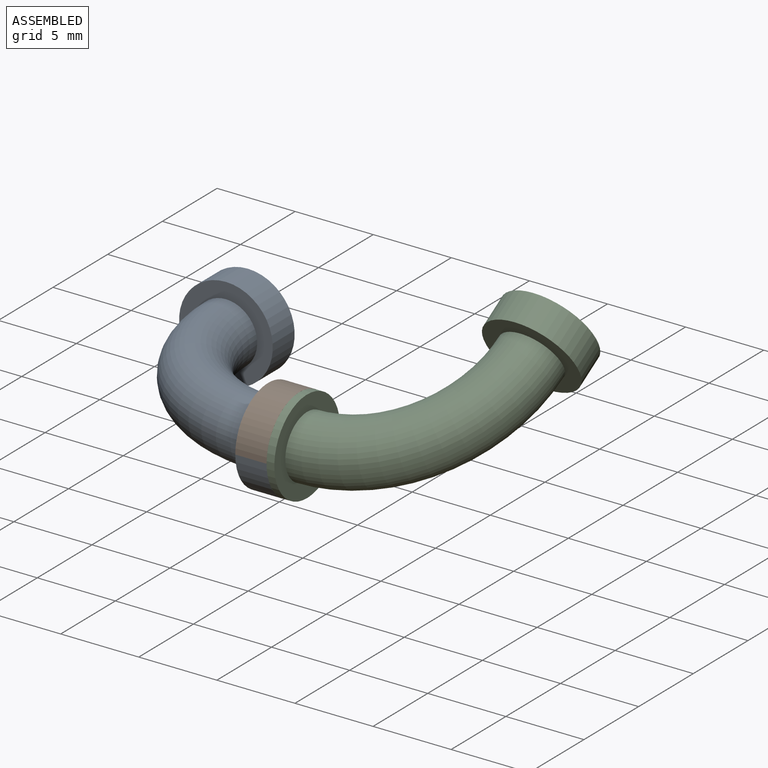
[diagram: assembled view]
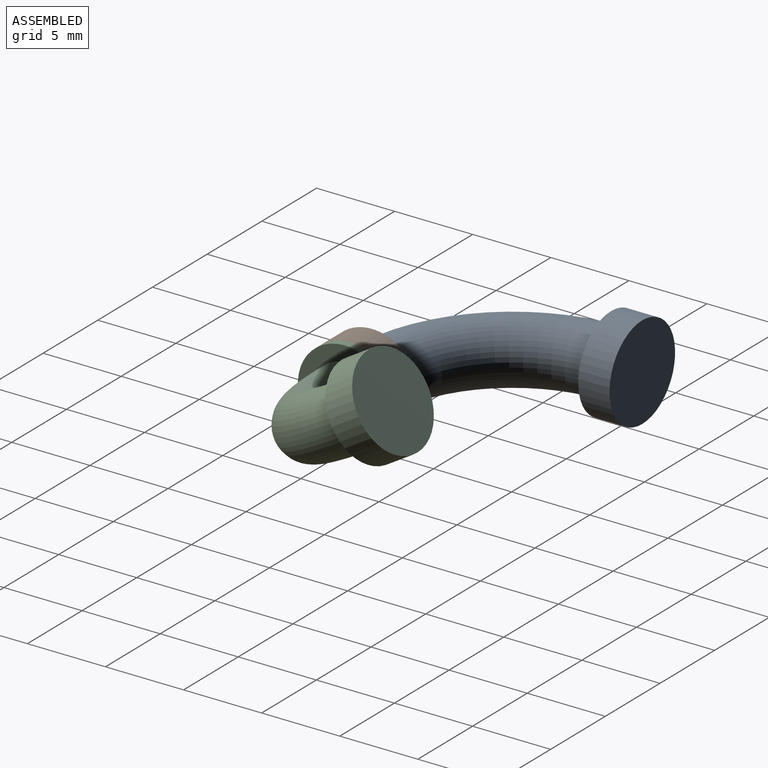
[diagram: assembled view, second angle]
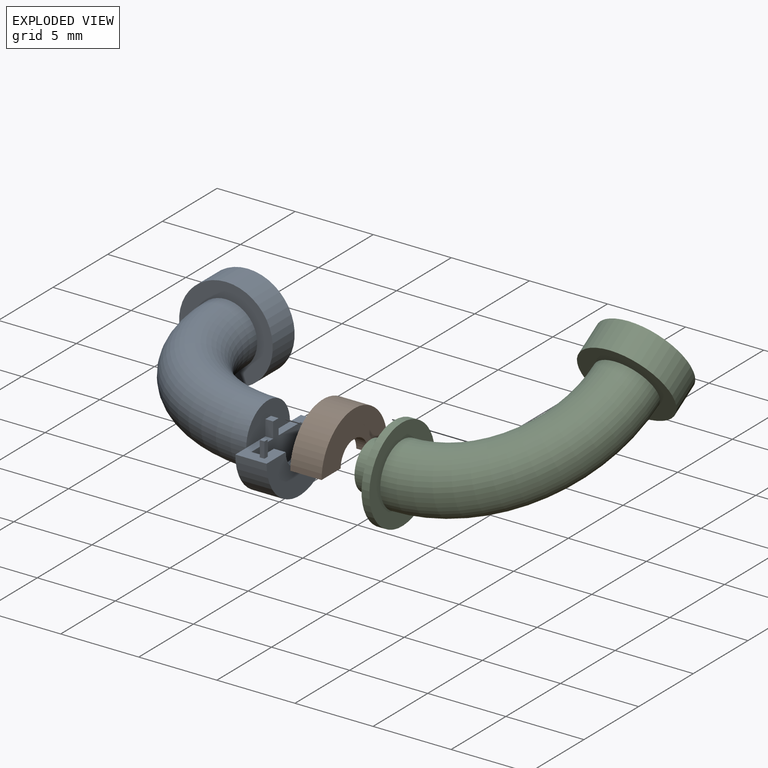
[diagram: exploded view]
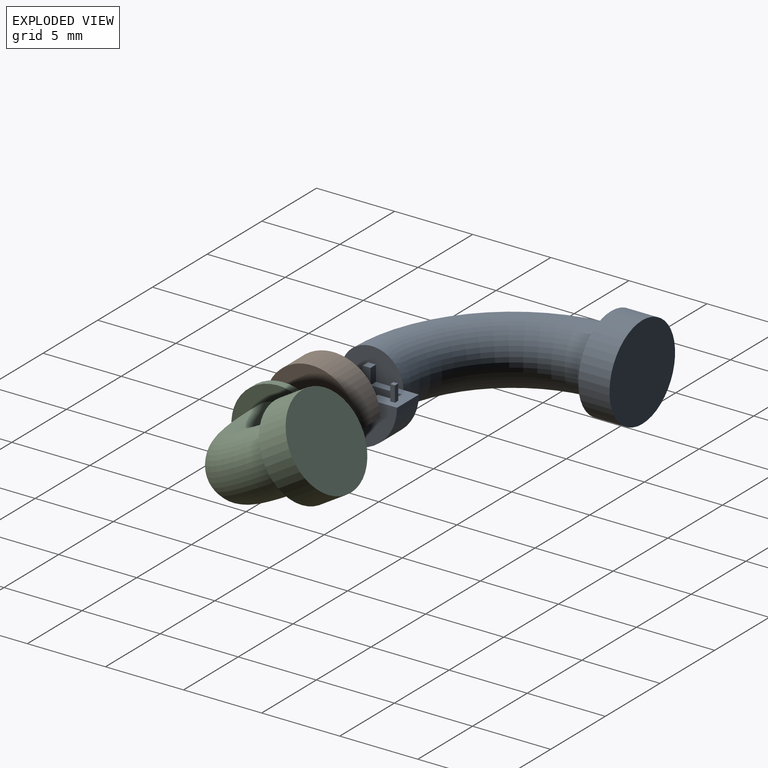
[diagram: exploded view, second angle]
ASSEMBLY  parts=3 mates=5
PART A: 27 faces, bbox 14x14x6 mm
  f0: plane 2.75x2mm, normal (0,0,-1), area 3.2mm2, adj f1,f3,f4,f5,f6,f7,f8,f9
  f1: plane 6x3mm, normal (-1,0,0), area 7.9mm2, adj f0,f2,f3,f10
  f2: torus R=9mm, axis (0,0,-1), area 177.7mm2, adj f1,f9,f12
  f3: cylinder r=3mm len=6mm, axis (1,0,0), area 18.8mm2, adj f0,f1,f4,f10
  f4: plane 6x3mm, normal (1,0,0), area 11.7mm2, adj f0,f3,f5,f10
  f5: cylinder r=1.25mm len=2.5mm, axis (1,0,0), area 2.9mm2, adj f0,f4,f6,f10
  f6: plane 4.5x2.25mm, normal (-1,0,0), area 5.5mm2, adj f0,f5,f7,f10
  f7: cylinder r=2.25mm len=4.5mm, axis (-1,0,0), area 5.3mm2, adj f0,f6,f8,f10
  f8: plane 4.5x3.25mm, normal (1,0,0), area 8.5mm2, adj f0,f7,f10,f24,f25,f26
  f9: plane 4x2mm, normal (1,0,0), area 5.8mm2, adj f0,f2,f10,f24,f25,f26
  f10: plane 2.75x2mm, normal (0,0,-1), area 3.2mm2, adj f1,f3,f4,f5,f6,f7,f8,f9
  f11: cylinder r=3mm len=6mm, axis (0,-1,0), area 37.7mm2, adj f12,f13
  f12: plane 6x6mm, normal (0,1,0), area 15.7mm2, adj f2,f11
  f13: plane 6x6mm, normal (0,-1,0), area 28.3mm2, adj f11
  f14: plane 1x0.3mm, normal (-1,0,0), area 0.3mm2, adj f10,f15,f17,f18
  f15: plane 1x0.3mm, normal (0,1,0), area 0.3mm2, adj f10,f14,f16,f18
  f16: plane 1x0.3mm, normal (1,0,0), area 0.3mm2, adj f10,f15,f17,f18
  f17: plane 1x0.3mm, normal (0,-1,0), area 0.3mm2, adj f10,f14,f16,f18
  f18: plane 0.3x0.3mm, normal (0,0,-1), area 0.1mm2, adj f14,f15,f16,f17
  f19: plane 1x0.3mm, normal (0,-1,0), area 0.3mm2, adj f0,f20,f22,f23
  f20: plane 1x0.3mm, normal (-1,0,0), area 0.3mm2, adj f0,f19,f21,f23
  f21: plane 1x0.3mm, normal (0,1,0), area 0.3mm2, adj f0,f20,f22,f23
  f22: plane 1x0.3mm, normal (1,0,0), area 0.3mm2, adj f0,f19,f21,f23
  f23: plane 0.3x0.3mm, normal (0,0,-1), area 0.1mm2, adj f19,f20,f21,f22
  f24: plane 1x0.5mm, normal (0,-1,0), area 0.5mm2, adj f8,f9,f10,f26
  f25: plane 1x0.5mm, normal (0,1,0), area 0.5mm2, adj f0,f8,f9,f26
  f26: plane 0.5x0.5mm, normal (0,0,-1), area 0.3mm2, adj f8,f9,f24,f25
PART B: 22 faces, bbox 2x6x3 mm
  f0: plane 4.5x2.25mm, normal (1,0,0), area 7.2mm2, adj f1,f7,f8,f19,f20,f21
  f1: plane 2.7x2mm, normal (0,0,-1), area 3.1mm2, adj f0,f2,f3,f4,f5,f6,f7,f9
  f2: plane 6x3mm, normal (-1,0,0), area 13.4mm2, adj f1,f3,f8,f19,f20,f21
  f3: cylinder r=3mm len=6mm, axis (1,0,0), area 18.8mm2, adj f1,f2,f4,f8
  f4: plane 6x3mm, normal (1,0,0), area 11.7mm2, adj f1,f3,f5,f8
  f5: cylinder r=1.25mm len=2.5mm, axis (1,0,0), area 2.9mm2, adj f1,f4,f6,f8
  f6: plane 4.5x2.25mm, normal (-1,0,0), area 5.5mm2, adj f1,f5,f7,f8
  f7: cylinder r=2.25mm len=4.5mm, axis (-1,0,0), area 5.3mm2, adj f0,f1,f6,f8
  f8: plane 2.7x2mm, normal (0,0,-1), area 3.1mm2, adj f0,f2,f3,f4,f5,f6,f7,f14
  f9: plane 1.2x0.35mm, normal (0,1,0), area 0.4mm2, adj f1,f10,f12,f13
  f10: plane 1.2x0.35mm, normal (1,0,0), area 0.4mm2, adj f1,f9,f11,f13
  f11: plane 1.2x0.35mm, normal (0,-1,0), area 0.4mm2, adj f1,f10,f12,f13
  f12: plane 1.2x0.35mm, normal (-1,0,0), area 0.4mm2, adj f1,f9,f11,f13
  f13: plane 0.35x0.35mm, normal (0,0,-1), area 0.1mm2, adj f9,f10,f11,f12
  f14: plane 1.2x0.35mm, normal (1,0,0), area 0.4mm2, adj f8,f15,f17,f18
  f15: plane 1.2x0.35mm, normal (0,-1,0), area 0.4mm2, adj f8,f14,f16,f18
  f16: plane 1.2x0.35mm, normal (-1,0,0), area 0.4mm2, adj f8,f15,f17,f18
  f17: plane 1.2x0.35mm, normal (0,1,0), area 0.4mm2, adj f8,f14,f16,f18
  f18: plane 0.35x0.35mm, normal (0,0,-1), area 0.1mm2, adj f14,f15,f16,f17
  f19: plane 1.2x0.5mm, normal (0,1,0), area 0.6mm2, adj f0,f2,f8,f21
  f20: plane 1.2x0.5mm, normal (0,-1,0), area 0.6mm2, adj f0,f1,f2,f21
  f21: plane 0.6x0.5mm, normal (0,0,-1), area 0.3mm2, adj f0,f2,f19,f20
PART C: 11 faces, bbox 14x14x6 mm
  f0: cylinder r=1.15mm len=2.3mm, axis (1,0,0), area 6.1mm2, adj f2,f5
  f1: cylinder r=1.5mm len=3mm, axis (1,0,0), area 6.1mm2, adj f2,f3
  f2: plane 3x3mm, normal (-1,0,0), area 2.9mm2, adj f0,f1
  f3: plane 3x3mm, normal (1,0,0), area 7.1mm2, adj f1
  f4: cylinder r=3mm len=6mm, axis (-1,0,0), area 9.4mm2, adj f5,f6
  f5: plane 6x6mm, normal (1,0,0), area 24.1mm2, adj f0,f4
  f6: plane 6x6mm, normal (-1,0,0), area 15.7mm2, adj f4,f10
  f7: plane 6x6mm, normal (0,-1,0), area 28.3mm2, adj f8
  f8: cylinder r=3mm len=6mm, axis (0,-1,0), area 37.7mm2, adj f7,f9
  f9: plane 6x6mm, normal (0,1,0), area 15.7mm2, adj f8,f10
  f10: torus R=9mm, axis (0,0,-1), area 177.7mm2, adj f6,f9
PLACE A rot(axis=(1,0,0),180deg) t=(1.01,26.37,0)mm fixed
PLACE B t=(1.01,4.37,0)mm
PLACE C rot(axis=(0,-0.27,0.96),180deg) t=(-0.49,24.77,5.72)mm
MATE planar A.f9 <-> B.f3  axis (1,0,0) through (-0.99,15.37,0.88)mm
MATE cylindrical C.f1 <-> A.f3  axis (-1,0,0) through (0.16,15.38,0)mm
MATE planar A.f8 <-> C.f1  axis (1,0,0) through (-0.49,15.37,-0.87)mm
MATE planar A.f0 <-> B.f1  axis (0,0,1) through (1.01,13.25,0)mm
MATE cylindrical B.f3 <-> C.f1  axis (1,0,0) through (0.64,15.38,0)mm
